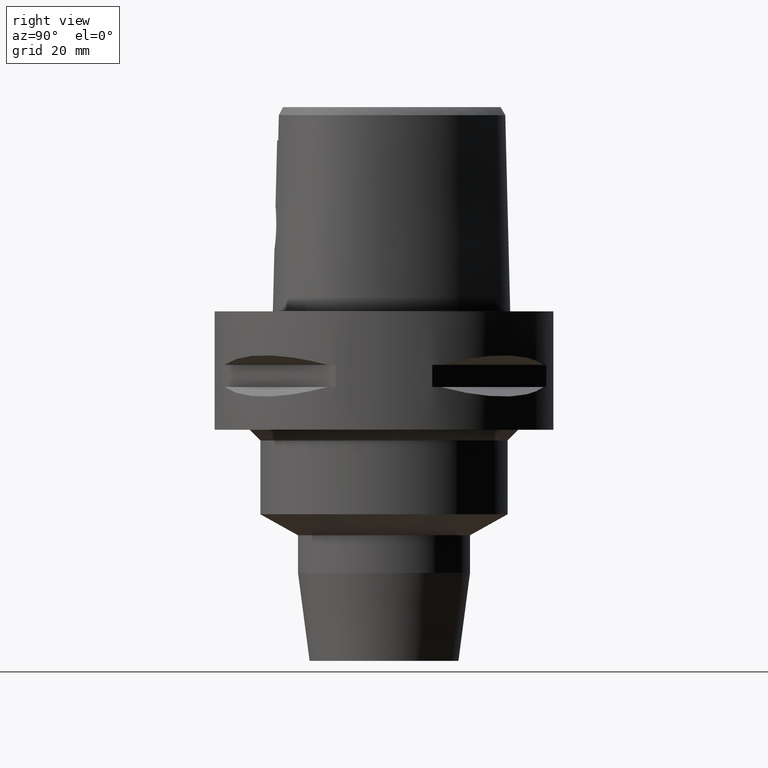
[diagram: clean part render]
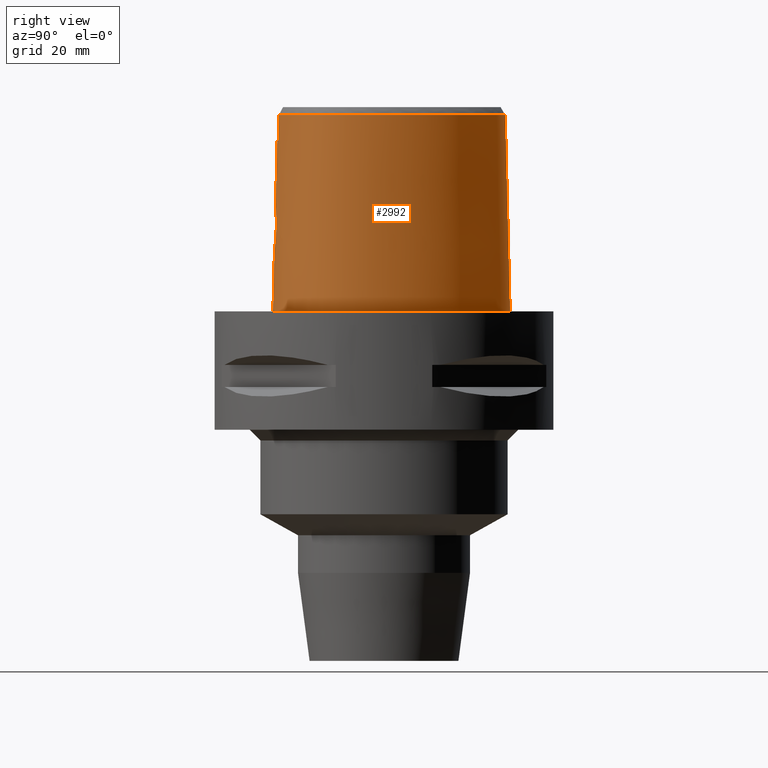
[diagram: same view with one face highlighted and labeled with its STEP entity id]
A machine part, right view. The second image highlights one B-rep face of the part: STEP entity #2992.
In plain terms, the highlighted face is a freeform B-spline surface patch.
Its self-contained STEP definition (entity closure, byte-faithful):
#140=CARTESIAN_POINT('',(3.637738219117E0,-1.956971420299E1,3.652185956444E1));
#150=CARTESIAN_POINT('',(-1.479174793488E-11,2.256201468012E1,
3.652186680744E1));
#151=CARTESIAN_POINT('',(3.610786659847E-1,2.256201468011E1,3.652186680744E1));
#152=CARTESIAN_POINT('',(1.084964755039E0,2.252834456544E1,3.652178388300E1));
#153=CARTESIAN_POINT('',(2.261568656474E0,2.235920294627E1,3.652188135787E1));
#154=CARTESIAN_POINT('',(3.479889537052E0,2.206225044276E1,3.652186747821E1));
#155=CARTESIAN_POINT('',(4.749773252140E0,2.162600264661E1,3.652186888219E1));
#156=CARTESIAN_POINT('',(6.053995512586E0,2.104450851323E1,3.652186622868E1));
#157=CARTESIAN_POINT('',(7.369796609175E0,2.032095771323E1,3.652186623396E1));
#158=CARTESIAN_POINT('',(8.658915874036E0,1.947812933514E1,3.652186856267E1));
#159=CARTESIAN_POINT('',(9.948584403228E0,1.849933553210E1,3.652186905374E1));
#160=CARTESIAN_POINT('',(1.125885741255E1,1.735924600619E1,3.652186677641E1));
#161=CARTESIAN_POINT('',(1.264257854762E1,1.598433973102E1,3.652186244259E1));
#162=CARTESIAN_POINT('',(1.410222740801E1,1.431613979528E1,3.652187554382E1));
#163=CARTESIAN_POINT('',(1.556020049322E1,1.238294122203E1,3.652183502903E1));
#164=CARTESIAN_POINT('',(1.694054512108E1,1.024136738866E1,3.652187361503E1));
#165=CARTESIAN_POINT('',(1.816673637822E1,7.984396163629E0,3.652185343285E1));
#166=CARTESIAN_POINT('',(1.917244812474E1,5.753195207714E0,3.652187498027E1));
#167=CARTESIAN_POINT('',(1.993973467367E1,3.666435166040E0,3.652185664688E1));
#168=CARTESIAN_POINT('',(2.050594721949E1,1.723281261227E0,3.652187251979E1));
#169=CARTESIAN_POINT('',(2.089615519456E1,-5.600216280864E-2,3.652187307001E1));
#170=CARTESIAN_POINT('',(2.114393520236E1,-1.711195652477E0,3.652186315345E1));
#171=CARTESIAN_POINT('',(2.126841868200E1,-3.280977836459E0,3.652186581010E1));
#172=CARTESIAN_POINT('',(2.127514650098E1,-4.806986597061E0,3.652187403989E1));
#173=CARTESIAN_POINT('',(2.116336783226E1,-6.254587308714E0,3.652186376786E1));
#174=CARTESIAN_POINT('',(2.094026522991E1,-7.606267409492E0,3.652187208967E1));
#175=CARTESIAN_POINT('',(2.061598465367E1,-8.849857767009E0,3.652186773547E1));
#176=CARTESIAN_POINT('',(2.020579114491E1,-9.975912020787E0,3.652185927283E1));
#177=CARTESIAN_POINT('',(1.971362077645E1,-1.100705880111E1,3.652187187726E1));
#178=CARTESIAN_POINT('',(1.913469017040E1,-1.196277670915E1,3.652189067620E1));
#179=CARTESIAN_POINT('',(1.844652970258E1,-1.288386213440E1,3.652187244393E1));
#180=CARTESIAN_POINT('',(1.763221533016E1,-1.378394996279E1,3.652186446096E1));
#181=CARTESIAN_POINT('',(1.666351706260E1,-1.467364050954E1,3.652187358091E1));
#182=CARTESIAN_POINT('',(1.554826188513E1,-1.552669082319E1,3.652186504538E1));
#183=CARTESIAN_POINT('',(1.429957122875E1,-1.632370141586E1,3.652187136226E1));
#184=CARTESIAN_POINT('',(1.295274109342E1,-1.704154833387E1,3.652186305354E1));
#185=CARTESIAN_POINT('',(1.150266138868E1,-1.768631919253E1,3.652187139501E1));
#186=CARTESIAN_POINT('',(9.894715099186E0,-1.827441576025E1,3.652186029670E1));
#187=CARTESIAN_POINT('',(8.080661389197E0,-1.880279463105E1,3.652186647197E1));
#188=CARTESIAN_POINT('',(6.029971050765E0,-1.925254911265E1,3.652187141348E1));
#189=CARTESIAN_POINT('',(4.463183476895E0,-1.948176575410E1,3.652183835797E1));
#190=CARTESIAN_POINT('',(3.637738219117E0,-1.956971420299E1,3.652185956444E1));
#267=DIRECTION('',(-1.665636293796E-9,-2.499140646182E-2,-9.996876660253E-1));
#268=VECTOR('',#267,1.225382733632E1);
#269=CARTESIAN_POINT('',(2.041042029991E-8,-1.988004246002E1,3.180000004972E1));
#270=LINE('',#269,#268);
#289=CARTESIAN_POINT('',(-1.661817726879E-12,-2.038876923348E1,1.145E1));
#294=DIRECTION('',(-1.018537046801E-12,-2.499051295361E-2,-9.996876883619E-1));
#295=VECTOR('',#294,1.145357708542E1);
#296=CARTESIAN_POINT('',(-1.661817726879E-12,-2.038876923348E1,1.145E1));
#297=LINE('',#296,#295);
#317=CARTESIAN_POINT('',(-1.332771030677E-11,-2.0675E1,1.593170040337E-13));
#318=CARTESIAN_POINT('',(8.668635618114E-1,-2.0675E1,1.593170040337E-13));
#319=CARTESIAN_POINT('',(2.574085744669E0,-2.061244379246E1,
-7.393927889095E-14));
#320=CARTESIAN_POINT('',(5.087321763259E0,-2.033692107424E1,
1.981197006777E-14));
#321=CARTESIAN_POINT('',(7.457228239742E0,-1.989746383402E1,0.E0));
#322=CARTESIAN_POINT('',(9.642360931013E0,-1.932000469216E1,0.E0));
#323=CARTESIAN_POINT('',(1.161475875249E1,-1.863271590628E1,0.E0));
#324=CARTESIAN_POINT('',(1.336657883010E1,-1.786245913721E1,0.E0));
#325=CARTESIAN_POINT('',(1.490385795272E1,-1.703152855201E1,0.E0));
#326=CARTESIAN_POINT('',(1.624039232175E1,-1.615727891587E1,0.E0));
#327=CARTESIAN_POINT('',(1.739413633099E1,-1.525169519717E1,0.E0));
#328=CARTESIAN_POINT('',(1.838376037085E1,-1.432241133478E1,0.E0));
#329=CARTESIAN_POINT('',(1.922761646808E1,-1.337160235576E1,0.E0));
#330=CARTESIAN_POINT('',(1.993658075864E1,-1.240633860554E1,0.E0));
#331=CARTESIAN_POINT('',(2.053390309276E1,-1.140907348742E1,0.E0));
#332=CARTESIAN_POINT('',(2.104266179985E1,-1.034118628221E1,0.E0));
#333=CARTESIAN_POINT('',(2.147165783006E1,-9.172770173640E0,0.E0));
#334=CARTESIAN_POINT('',(2.181304575510E1,-7.891292903678E0,0.E0));
#335=CARTESIAN_POINT('',(2.205614142327E1,-6.484116343921E0,0.E0));
#336=CARTESIAN_POINT('',(2.218642871279E1,-4.937696867047E0,0.E0));
#337=CARTESIAN_POINT('',(2.218554074858E1,-3.241749842939E0,0.E0));
#338=CARTESIAN_POINT('',(2.203215039418E1,-1.390046967667E0,0.E0));
#339=CARTESIAN_POINT('',(2.170379289163E1,6.141816135157E-1,0.E0));
#340=CARTESIAN_POINT('',(2.117959066825E1,2.756605347947E0,0.E0));
#341=CARTESIAN_POINT('',(2.044533571743E1,5.004906549923E0,0.E0));
#342=CARTESIAN_POINT('',(1.949764110724E1,7.310997169144E0,0.E0));
#343=CARTESIAN_POINT('',(1.834957951011E1,9.609775913951E0,0.E0));
#344=CARTESIAN_POINT('',(1.702834160611E1,1.183387703272E1,0.E0));
#345=CARTESIAN_POINT('',(1.556975211006E1,1.392549374732E1,0.E0));
#346=CARTESIAN_POINT('',(1.402194911132E1,1.582979053308E1,0.E0));
#347=CARTESIAN_POINT('',(1.243311121268E1,1.751093298070E1,0.E0));
#348=CARTESIAN_POINT('',(1.084451840912E1,1.895373723494E1,0.E0));
#349=CARTESIAN_POINT('',(9.286412256216E0,2.016070912591E1,0.E0));
#350=CARTESIAN_POINT('',(7.778977833570E0,2.114525500213E1,0.E0));
#351=CARTESIAN_POINT('',(6.332494175989E0,2.192732779116E1,0.E0));
#352=CARTESIAN_POINT('',(4.950310982552E0,2.252847672854E1,0.E0));
#353=CARTESIAN_POINT('',(3.631073081959E0,2.296926503261E1,0.E0));
#354=CARTESIAN_POINT('',(2.369413139661E0,2.326780726425E1,1.944840546025E-14));
#355=CARTESIAN_POINT('',(1.160510589301E0,2.343866324057E1,
-7.258243730387E-14));
#356=CARTESIAN_POINT('',(3.818535017165E-1,2.347499999998E1,
1.563934167355E-13));
#357=CARTESIAN_POINT('',(6.589893037965E-11,2.347499999998E1,
1.563934167355E-13));
#362=CARTESIAN_POINT('',(6.589893037965E-11,2.347499999998E1,
1.563934167355E-13));
#402=CARTESIAN_POINT('',(-1.332771030677E-11,-2.0675E1,1.593170040337E-13));
#993=CARTESIAN_POINT('',(-1.661817726879E-12,-2.038876923348E1,1.145E1));
#994=CARTESIAN_POINT('',(3.228233799034E-1,-2.038876923348E1,1.145E1));
#995=CARTESIAN_POINT('',(9.702896244081E-1,-2.037778048123E1,1.152777546487E1));
#996=CARTESIAN_POINT('',(1.889855468063E0,-2.033118193852E1,1.187278857892E1));
#997=CARTESIAN_POINT('',(2.706932148077E0,-2.026249671308E1,1.243512304599E1));
#998=CARTESIAN_POINT('',(3.353033987211E0,-2.018712482033E1,1.315967242288E1));
#999=CARTESIAN_POINT('',(3.818605617722E0,-2.011617971206E1,1.403449309483E1));
#1000=CARTESIAN_POINT('',(4.058001837367E0,-2.006424560180E1,1.499259160029E1));
#1001=CARTESIAN_POINT('',(4.061276117386E0,-2.003905984198E1,1.597739220882E1));
#1002=CARTESIAN_POINT('',(3.831289164672E0,-2.004189187486E1,1.692996866127E1));
#1003=CARTESIAN_POINT('',(3.377453406792E0,-2.006802572633E1,1.780540836356E1));
#1004=CARTESIAN_POINT('',(2.731873560181E0,-2.010738615016E1,1.854385772969E1));
#1005=CARTESIAN_POINT('',(1.910352210748E0,-2.014877962405E1,1.911761508559E1));
#1006=CARTESIAN_POINT('',(9.782234358337E-1,-2.017903736205E1,
1.947133563427E1));
#1007=CARTESIAN_POINT('',(3.251395088483E-1,-2.018628283969E1,1.955E1));
#1008=CARTESIAN_POINT('',(0.E0,-2.018628283969E1,1.955E1));
#1013=CARTESIAN_POINT('',(3.736696120838E0,-1.967778323292E1,3.180000004973E1));
#1014=CARTESIAN_POINT('',(3.726005752326E0,-1.966575923680E1,3.232454431400E1));
#1015=CARTESIAN_POINT('',(3.704089546608E0,-1.964135163374E1,3.337368958251E1));
#1016=CARTESIAN_POINT('',(3.671106187705E0,-1.960533295284E1,3.494764256979E1));
#1017=CARTESIAN_POINT('',(3.649042743234E0,-1.958170238761E1,3.599710209057E1));
#1018=CARTESIAN_POINT('',(3.637738219117E0,-1.956971420299E1,3.652185956444E1));
#1023=DIRECTION('',(2.208689881654E-12,2.499051290945E-2,-9.996876883630E-1));
#1024=VECTOR('',#1023,3.653327657485E1);
#1025=CARTESIAN_POINT('',(-1.479174793488E-11,2.256201468012E1,
3.652186680744E1));
#1026=LINE('',#1025,#1024);
#1030=CARTESIAN_POINT('',(3.736696120838E0,-1.967778323292E1,3.180000004973E1));
#1031=CARTESIAN_POINT('',(3.322953877844E0,-1.972294683117E1,3.180000004973E1));
#1032=CARTESIAN_POINT('',(2.494485023251E0,-1.979770229043E1,3.179999998342E1));
#1033=CARTESIAN_POINT('',(1.247889117313E0,-1.986528006854E1,3.179999998343E1));
#1034=CARTESIAN_POINT('',(4.161790006858E-1,-1.988004246001E1,
3.180000004972E1));
#1035=CARTESIAN_POINT('',(2.041042029991E-8,-1.988004246002E1,
3.180000004972E1));
#1040=CARTESIAN_POINT('',(2.041042029991E-8,-1.988004246002E1,
3.180000004972E1));
#1529=VERTEX_POINT('',#140);
#1530=VERTEX_POINT('',#1013);
#1536=CARTESIAN_POINT('',(-1.479174793488E-11,2.256201468012E1,
3.652186680744E1));
#1537=VERTEX_POINT('',#1536);
#1538=VERTEX_POINT('',#362);
#1539=VERTEX_POINT('',#402);
#1540=VERTEX_POINT('',#1040);
#1541=CARTESIAN_POINT('',(0.E0,-2.018628283969E1,1.955E1));
#1542=VERTEX_POINT('',#1541);
#1543=VERTEX_POINT('',#289);
#2880=CARTESIAN_POINT('',(-6.840631436330E-1,-2.068668116417E1,
-7.304376901932E-1));
#2881=CARTESIAN_POINT('',(-6.779734136918E-1,-2.037023483766E1,
1.193048227316E1));
#2882=CARTESIAN_POINT('',(-6.718836837505E-1,-2.005378851114E1,
2.459140223650E1));
#2883=CARTESIAN_POINT('',(-6.657939538093E-1,-1.973734218462E1,
3.725232219985E1));
#2884=CARTESIAN_POINT('',(-4.561077449781E-1,-2.069106755647E1,
-7.304376901932E-1));
#2885=CARTESIAN_POINT('',(-4.520500670574E-1,-2.037458447450E1,
1.193048227316E1));
#2886=CARTESIAN_POINT('',(-4.479923891367E-1,-2.005810139254E1,
2.459140223650E1));
#2887=CARTESIAN_POINT('',(-4.439347112160E-1,-1.974161831057E1,
3.725232219985E1));
#2888=CARTESIAN_POINT('',(1.886855603283E0,-2.071358919566E1,
-7.304376901932E-1));
#2889=CARTESIAN_POINT('',(1.870063862088E0,-2.039691451318E1,1.193048227316E1));
#2890=CARTESIAN_POINT('',(1.853272120892E0,-2.008023983070E1,2.459140223650E1));
#2891=CARTESIAN_POINT('',(1.836480379697E0,-1.976356514822E1,3.725232219985E1));
#2892=CARTESIAN_POINT('',(6.344715576744E0,-2.031619964993E1,
-7.304376901932E-1));
#2893=CARTESIAN_POINT('',(6.288476579520E0,-2.000290571785E1,1.193048227316E1));
#2894=CARTESIAN_POINT('',(6.232237582296E0,-1.968961178577E1,2.459140223650E1));
#2895=CARTESIAN_POINT('',(6.175998585072E0,-1.937631785369E1,3.725232219985E1));
#2896=CARTESIAN_POINT('',(1.123887130262E1,-1.891049776039E1,
-7.304376901932E-1));
#2897=CARTESIAN_POINT('',(1.113012655669E1,-1.861140116354E1,1.193048227316E1));
#2898=CARTESIAN_POINT('',(1.102138181076E1,-1.831230456669E1,2.459140223650E1));
#2899=CARTESIAN_POINT('',(1.091263706482E1,-1.801320796985E1,3.725232219985E1));
#2900=CARTESIAN_POINT('',(1.468244497132E1,-1.723001773053E1,
-7.304376901932E-1));
#2901=CARTESIAN_POINT('',(1.452531263443E1,-1.695413748472E1,1.193048227316E1));
#2902=CARTESIAN_POINT('',(1.436818029753E1,-1.667825723892E1,2.459140223650E1));
#2903=CARTESIAN_POINT('',(1.421104796064E1,-1.640237699312E1,3.725232219985E1));
#2904=CARTESIAN_POINT('',(1.697022731127E1,-1.569280483136E1,
-7.304376901932E-1));
#2905=CARTESIAN_POINT('',(1.677374383225E1,-1.544292473367E1,1.193048227316E1));
#2906=CARTESIAN_POINT('',(1.657726035323E1,-1.519304463598E1,2.459140223650E1));
#2907=CARTESIAN_POINT('',(1.638077687422E1,-1.494316453830E1,3.725232219985E1));
#2908=CARTESIAN_POINT('',(1.858171406606E1,-1.418198046568E1,
-7.304376901932E-1));
#2909=CARTESIAN_POINT('',(1.835112154555E1,-1.396357036249E1,1.193048227316E1));
#2910=CARTESIAN_POINT('',(1.812052902503E1,-1.374516025930E1,2.459140223650E1));
#2911=CARTESIAN_POINT('',(1.788993650452E1,-1.352675015611E1,3.725232219985E1));
#2912=CARTESIAN_POINT('',(1.966427014648E1,-1.283600704689E1,
-7.304376901932E-1));
#2913=CARTESIAN_POINT('',(1.940779769053E1,-1.264961927581E1,1.193048227316E1));
#2914=CARTESIAN_POINT('',(1.915132523459E1,-1.246323150472E1,2.459140223650E1));
#2915=CARTESIAN_POINT('',(1.889485277864E1,-1.227684373363E1,3.725232219985E1));
#2916=CARTESIAN_POINT('',(2.036546124536E1,-1.175800453221E1,
-7.304376901932E-1));
#2917=CARTESIAN_POINT('',(2.009084474232E1,-1.159945461966E1,1.193048227316E1));
#2918=CARTESIAN_POINT('',(1.981622823929E1,-1.144090470711E1,2.459140223650E1));
#2919=CARTESIAN_POINT('',(1.954161173626E1,-1.128235479456E1,3.725232219985E1));
#2920=CARTESIAN_POINT('',(2.094844325891E1,-1.061175397009E1,
-7.304376901932E-1));
#2921=CARTESIAN_POINT('',(2.065879048791E1,-1.048283619680E1,1.193048227316E1));
#2922=CARTESIAN_POINT('',(2.036913771691E1,-1.035391842350E1,2.459140223650E1));
#2923=CARTESIAN_POINT('',(2.007948494591E1,-1.022500065021E1,3.725232219985E1));
#2924=CARTESIAN_POINT('',(2.157281239289E1,-9.001246195262E0,
-7.304376901932E-1));
#2925=CARTESIAN_POINT('',(2.126836742455E1,-8.910752248218E0,1.193048227316E1));
#2926=CARTESIAN_POINT('',(2.096392245622E1,-8.820258301174E0,2.459140223650E1));
#2927=CARTESIAN_POINT('',(2.065947748788E1,-8.729764354129E0,3.725232219985E1));
#2928=CARTESIAN_POINT('',(2.207548129138E1,-6.850245535523E0,
-7.304376901932E-1));
#2929=CARTESIAN_POINT('',(2.176083712333E1,-6.805026044789E0,1.193048227316E1));
#2930=CARTESIAN_POINT('',(2.144619295528E1,-6.759806554055E0,2.459140223650E1));
#2931=CARTESIAN_POINT('',(2.113154878723E1,-6.714587063321E0,3.725232219985E1));
#2932=CARTESIAN_POINT('',(2.226285556565E1,-4.100361500047E0,
-7.304376901932E-1));
#2933=CARTESIAN_POINT('',(2.194536978923E1,-4.102220499227E0,1.193048227316E1));
#2934=CARTESIAN_POINT('',(2.162788401281E1,-4.104079498406E0,2.459140223650E1));
#2935=CARTESIAN_POINT('',(2.131039823640E1,-4.105938497586E0,3.725232219985E1));
#2936=CARTESIAN_POINT('',(2.199640701621E1,-2.778990161798E-1,
-7.304376901932E-1));
#2937=CARTESIAN_POINT('',(2.168301101824E1,-3.332744023962E-1,
1.193048227316E1));
#2938=CARTESIAN_POINT('',(2.136961502027E1,-3.886497886127E-1,
2.459140223650E1));
#2939=CARTESIAN_POINT('',(2.105621902230E1,-4.440251748291E-1,
3.725232219985E1));
#2940=CARTESIAN_POINT('',(2.076670354939E1,4.663413654085E0,
-7.304376901932E-1));
#2941=CARTESIAN_POINT('',(2.046725044580E1,4.555493649943E0,1.193048227316E1));
#2942=CARTESIAN_POINT('',(2.016779734220E1,4.447573645802E0,2.459140223650E1));
#2943=CARTESIAN_POINT('',(1.986834423861E1,4.339653641660E0,3.725232219985E1));
#2944=CARTESIAN_POINT('',(1.808416038341E1,1.044089487227E1,
-7.304376901932E-1));
#2945=CARTESIAN_POINT('',(1.780867308233E1,1.028184208634E1,1.193048227316E1));
#2946=CARTESIAN_POINT('',(1.753318578125E1,1.012278930042E1,2.459140223650E1));
#2947=CARTESIAN_POINT('',(1.725769848017E1,9.963736514490E0,3.725232219985E1));
#2948=CARTESIAN_POINT('',(1.442198652023E1,1.565278600270E1,
-7.304376901932E-1));
#2949=CARTESIAN_POINT('',(1.417879758906E1,1.544741195595E1,1.193048227316E1));
#2950=CARTESIAN_POINT('',(1.393560865789E1,1.524203790920E1,2.459140223650E1));
#2951=CARTESIAN_POINT('',(1.369241972672E1,1.503666386246E1,3.725232219985E1));
#2952=CARTESIAN_POINT('',(1.075753573832E1,1.918839675772E1,
-7.304376901932E-1));
#2953=CARTESIAN_POINT('',(1.055288405761E1,1.894467587383E1,1.193048227316E1));
#2954=CARTESIAN_POINT('',(1.034823237690E1,1.870095498993E1,2.459140223650E1));
#2955=CARTESIAN_POINT('',(1.014358069619E1,1.845723410604E1,3.725232219985E1));
#2956=CARTESIAN_POINT('',(7.580410840290E0,2.133037926313E1,
-7.304376901932E-1));
#2957=CARTESIAN_POINT('',(7.420053137337E0,2.105635745215E1,1.193048227316E1));
#2958=CARTESIAN_POINT('',(7.259695434383E0,2.078233564116E1,2.459140223650E1));
#2959=CARTESIAN_POINT('',(7.099337731429E0,2.050831383018E1,3.725232219985E1));
#2960=CARTESIAN_POINT('',(5.105252916203E0,2.254305024264E1,
-7.304376901932E-1));
#2961=CARTESIAN_POINT('',(4.987110668263E0,2.224795280772E1,1.193048227316E1));
#2962=CARTESIAN_POINT('',(4.868968420322E0,2.195285537279E1,2.459140223650E1));
#2963=CARTESIAN_POINT('',(4.750826172381E0,2.165775793786E1,3.725232219985E1));
#2964=CARTESIAN_POINT('',(2.568271205833E0,2.331126238417E1,
-7.304376901932E-1));
#2965=CARTESIAN_POINT('',(2.503210905309E0,2.299958939195E1,1.193048227316E1));
#2966=CARTESIAN_POINT('',(2.438150604784E0,2.268791639973E1,2.459140223650E1));
#2967=CARTESIAN_POINT('',(2.373090304260E0,2.237624340750E1,3.725232219985E1));
#2968=CARTESIAN_POINT('',(6.155340740544E-1,2.351883497781E1,
-7.304376901932E-1));
#2969=CARTESIAN_POINT('',(5.990982014027E-1,2.320165468536E1,1.193048227316E1));
#2970=CARTESIAN_POINT('',(5.826623287511E-1,2.288447439291E1,2.459140223650E1));
#2971=CARTESIAN_POINT('',(5.662264560994E-1,2.256729410047E1,3.725232219985E1));
#2972=CARTESIAN_POINT('',(-4.812391254214E-1,2.348607176313E1,
-7.304376901932E-1));
#2973=CARTESIAN_POINT('',(-4.685451965909E-1,2.316976074180E1,
1.193048227316E1));
#2974=CARTESIAN_POINT('',(-4.558512677605E-1,2.285344972047E1,
2.459140223650E1));
#2975=CARTESIAN_POINT('',(-4.431573389300E-1,2.253713869914E1,
3.725232219985E1));
#2976=CARTESIAN_POINT('',(-7.217521647869E-1,2.347150798723E1,
-7.304376901932E-1));
#2977=CARTESIAN_POINT('',(-7.025952861020E-1,2.315559745534E1,
1.193048227316E1));
#2978=CARTESIAN_POINT('',(-6.834384074171E-1,2.283968692346E1,
2.459140223650E1));
#2979=CARTESIAN_POINT('',(-6.642815287322E-1,2.252377639157E1,
3.725232219985E1));
#2980=B_SPLINE_SURFACE_WITH_KNOTS('',3,3,((#2880,#2881,#2882,#2883),(#2884,
#2885,#2886,#2887),(#2888,#2889,#2890,#2891),(#2892,#2893,#2894,#2895),(#2896,
#2897,#2898,#2899),(#2900,#2901,#2902,#2903),(#2904,#2905,#2906,#2907),(#2908,
#2909,#2910,#2911),(#2912,#2913,#2914,#2915),(#2916,#2917,#2918,#2919),(#2920,
#2921,#2922,#2923),(#2924,#2925,#2926,#2927),(#2928,#2929,#2930,#2931),(#2932,
#2933,#2934,#2935),(#2936,#2937,#2938,#2939),(#2940,#2941,#2942,#2943),(#2944,
#2945,#2946,#2947),(#2948,#2949,#2950,#2951),(#2952,#2953,#2954,#2955),(#2956,
#2957,#2958,#2959),(#2960,#2961,#2962,#2963),(#2964,#2965,#2966,#2967),(#2968,
#2969,#2970,#2971),(#2972,#2973,#2974,#2975),(#2976,#2977,#2978,#2979)),
.UNSPECIFIED.,.F.,.F.,.F.,(4,1,1,1,1,1,1,1,1,1,1,1,1,1,1,1,1,1,1,1,1,1,4),(4,4),
(-8.985960173608E-3,0.E0,8.333333333346E-2,1.666666666668E-1,2.083333333334E-1,
2.5E-1,2.916666666667E-1,3.125E-1,3.333333333333E-1,3.541666666667E-1,3.75E-1,
4.166666666667E-1,4.583333333332E-1,4.999999999999E-1,5.833333333332E-1,
6.666666666665E-1,7.499999999998E-1,8.333333333330E-1,8.749999999997E-1,
9.166666666664E-1,9.583333333330E-1,1.E0,1.011710456763E0),(9.240667397936E-10,
9.999999528726E-1),.UNSPECIFIED.);
#2981=ORIENTED_EDGE('',*,*,#2373,.F.);
#2982=ORIENTED_EDGE('',*,*,#2357,.F.);
#2983=ORIENTED_EDGE('',*,*,#2872,.T.);
#2984=ORIENTED_EDGE('',*,*,#2353,.F.);
#2986=ORIENTED_EDGE('',*,*,#2985,.F.);
#2987=ORIENTED_EDGE('',*,*,#1716,.T.);
#2988=ORIENTED_EDGE('',*,*,#1982,.F.);
#2989=ORIENTED_EDGE('',*,*,#2347,.T.);
#2990=EDGE_LOOP('',(#2981,#2982,#2983,#2984,#2986,#2987,#2988,#2989));
#2991=FACE_OUTER_BOUND('',#2990,.F.);
#191=B_SPLINE_CURVE_WITH_KNOTS('',3,(#150,#151,#152,#153,#154,#155,#156,#157,
#158,#159,#160,#161,#162,#163,#164,#165,#166,#167,#168,#169,#170,#171,#172,#173,
#174,#175,#176,#177,#178,#179,#180,#181,#182,#183,#184,#185,#186,#187,#188,#189,
#190),.UNSPECIFIED.,.F.,.F.,(4,1,1,1,1,1,1,1,1,1,1,1,1,1,1,1,1,1,1,1,1,1,1,1,1,
1,1,1,1,1,1,1,1,1,1,1,1,1,4),(0.E0,2.631578947368E-2,5.263157894737E-2,
7.894736842105E-2,1.052631578947E-1,1.315789473684E-1,1.578947368421E-1,
1.842105263158E-1,2.105263157895E-1,2.368421052632E-1,2.631578947368E-1,
2.894736842105E-1,3.157894736842E-1,3.421052631579E-1,3.684210526316E-1,
3.947368421053E-1,4.210526315789E-1,4.473684210526E-1,4.736842105263E-1,5.E-1,
5.263157894737E-1,5.526315789474E-1,5.789473684211E-1,6.052631578947E-1,
6.315789473684E-1,6.578947368421E-1,6.842105263158E-1,7.105263157895E-1,
7.368421052632E-1,7.631578947368E-1,7.894736842105E-1,8.157894736842E-1,
8.421052631579E-1,8.684210526316E-1,8.947368421053E-1,9.210526315789E-1,
9.473684210526E-1,9.736842105263E-1,1.E0),.UNSPECIFIED.);
#358=B_SPLINE_CURVE_WITH_KNOTS('',3,(#317,#318,#319,#320,#321,#322,#323,#324,
#325,#326,#327,#328,#329,#330,#331,#332,#333,#334,#335,#336,#337,#338,#339,#340,
#341,#342,#343,#344,#345,#346,#347,#348,#349,#350,#351,#352,#353,#354,#355,#356,
#357),.UNSPECIFIED.,.F.,.F.,(4,1,1,1,1,1,1,1,1,1,1,1,1,1,1,1,1,1,1,1,1,1,1,1,1,
1,1,1,1,1,1,1,1,1,1,1,1,1,4),(0.E0,2.631578947368E-2,5.263157894737E-2,
7.894736842105E-2,1.052631578947E-1,1.315789473684E-1,1.578947368421E-1,
1.842105263158E-1,2.105263157895E-1,2.368421052632E-1,2.631578947368E-1,
2.894736842105E-1,3.157894736842E-1,3.421052631579E-1,3.684210526316E-1,
3.947368421053E-1,4.210526315789E-1,4.473684210526E-1,4.736842105263E-1,5.E-1,
5.263157894737E-1,5.526315789474E-1,5.789473684211E-1,6.052631578947E-1,
6.315789473684E-1,6.578947368421E-1,6.842105263158E-1,7.105263157895E-1,
7.368421052632E-1,7.631578947368E-1,7.894736842105E-1,8.157894736842E-1,
8.421052631579E-1,8.684210526316E-1,8.947368421053E-1,9.210526315789E-1,
9.473684210526E-1,9.736842105263E-1,1.E0),.UNSPECIFIED.);
#1009=B_SPLINE_CURVE_WITH_KNOTS('',3,(#993,#994,#995,#996,#997,#998,#999,#1000,
#1001,#1002,#1003,#1004,#1005,#1006,#1007,#1008),.UNSPECIFIED.,.F.,.F.,(4,1,1,1,
1,1,1,1,1,1,1,1,1,4),(0.E0,7.692307692308E-2,1.538461538462E-1,
2.307692307692E-1,3.076923076923E-1,3.846153846154E-1,4.615384615385E-1,
5.384615384615E-1,6.153846153846E-1,6.923076923077E-1,7.692307692308E-1,
8.461538461538E-1,9.230769230769E-1,1.E0),.UNSPECIFIED.);
#1019=B_SPLINE_CURVE_WITH_KNOTS('',3,(#1013,#1014,#1015,#1016,#1017,#1018),
.UNSPECIFIED.,.F.,.F.,(4,1,1,4),(0.E0,3.333333333333E-1,6.666666666667E-1,1.E0),
.UNSPECIFIED.);
#1036=B_SPLINE_CURVE_WITH_KNOTS('',3,(#1030,#1031,#1032,#1033,#1034,#1035),
.UNSPECIFIED.,.F.,.F.,(4,1,1,4),(0.E0,3.333333333333E-1,6.666666666667E-1,1.E0),
.UNSPECIFIED.);
#1716=EDGE_CURVE('',#1530,#1529,#1019,.T.);
#1982=EDGE_CURVE('',#1537,#1529,#191,.T.);
#2347=EDGE_CURVE('',#1537,#1538,#1026,.T.);
#2353=EDGE_CURVE('',#1540,#1542,#270,.T.);
#2357=EDGE_CURVE('',#1543,#1539,#297,.T.);
#2373=EDGE_CURVE('',#1539,#1538,#358,.T.);
#2872=EDGE_CURVE('',#1543,#1542,#1009,.T.);
#2985=EDGE_CURVE('',#1530,#1540,#1036,.T.);
#2992=ADVANCED_FACE('',(#2991),#2980,.T.);